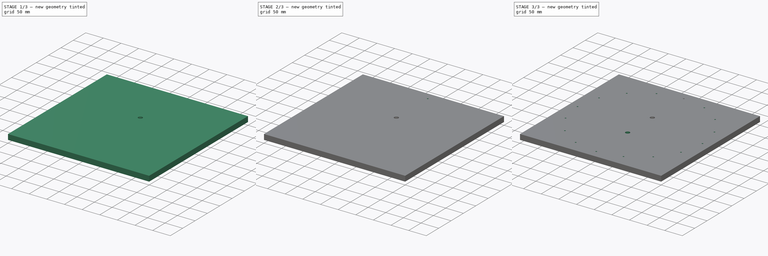
[diagram: build sequence overview — one tinted view per stage of 3, left to right]
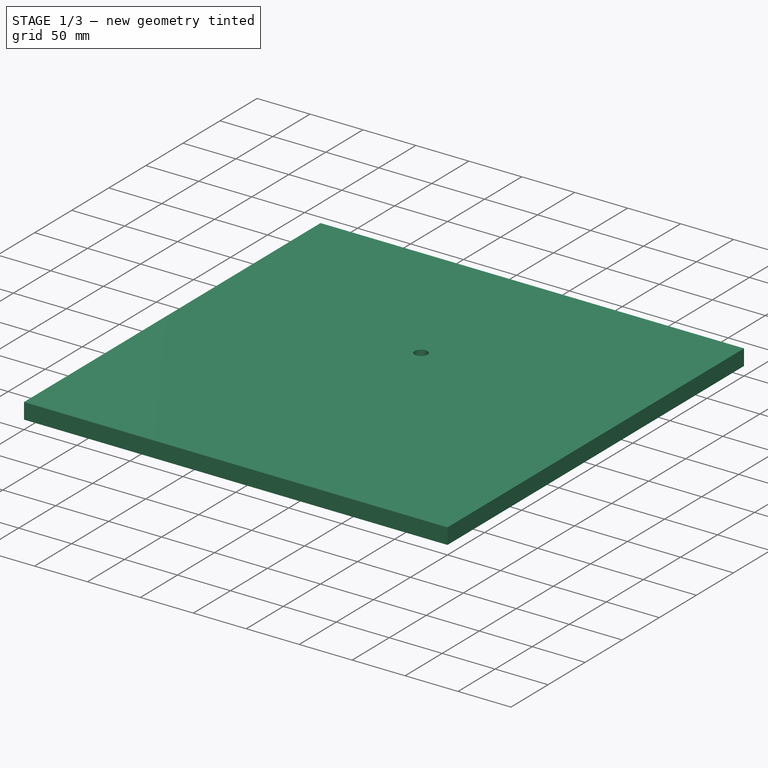
[diagram: stage 1 of 3 — iso view after this stage's code; geometry added in this stage tinted green]
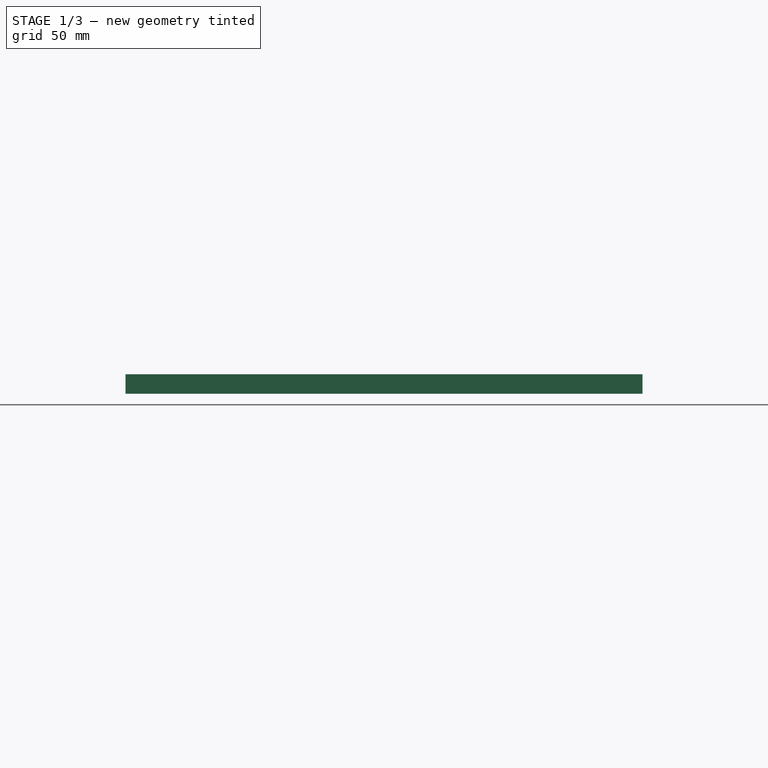
[diagram: stage 1 of 3 — front view after this stage's code; geometry added in this stage tinted green]
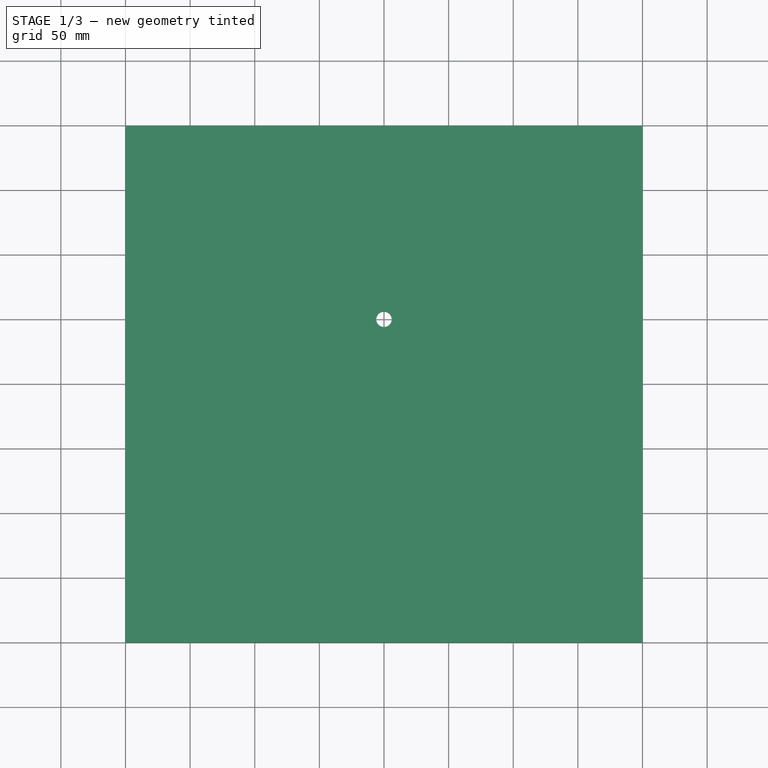
[diagram: stage 1 of 3 — top view after this stage's code; geometry added in this stage tinted green]
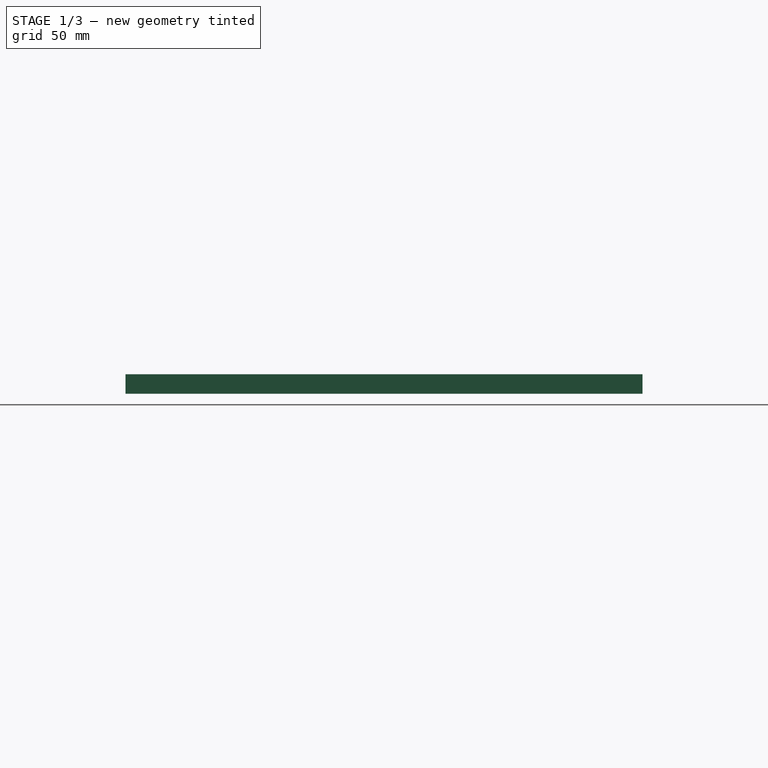
[diagram: stage 1 of 3 — right view after this stage's code; geometry added in this stage tinted green]
FCSTD DOCUMENT  (FreeCAD 0.20R29177 (Git))
Label: Rotor_Mold_Base
License: All rights reserved
LicenseURL: http://en.wikipedia.org/wiki/All_rights_reserved
objects: Sketcher::SketchObject×3, PartDesign::Pocket×2, PartDesign::PolarPattern×2, PartDesign::Pad×1, Spreadsheet::Sheet×1, PartDesign::Body×1
note: 12 computed .brp shape members not serialized (recipe doc carries the construction recipe); baked Part::Feature solids carry a one-line shape summary decoded from their .brp
EXTERNAL_REF file=../../../Master_of_Puppets.FCStd obj=Alternator
EXTERNAL_REF file=../../../Master_of_Puppets.FCStd obj=Hub
EXTERNAL_REF file=../../../Master_of_Puppets.FCStd obj=Spreadsheet

FEATURE [Sketcher::SketchObject] Sketch
  FullyConstrained = true
  MapMode = 5
  Support = -> [XY_Plane001]
  expr: Constraints[15] = Spreadsheet.RotorMoldSideLength
  sketch-geometry (6):
    g0: LineSegment StartX=-199.995 StartY=199.995 StartZ=0 EndX=199.995 EndY=199.995 EndZ=0
    g1: LineSegment StartX=199.995 StartY=199.995 StartZ=0 EndX=199.995 EndY=-199.995 EndZ=0
    g2: LineSegment StartX=199.995 StartY=-199.995 StartZ=0 EndX=-199.995 EndY=-199.995 EndZ=0
    g3: LineSegment StartX=-199.995 StartY=-199.995 StartZ=0 EndX=-199.995 EndY=199.995 EndZ=0
    g4: LineSegment StartX=-199.995 StartY=199.995 StartZ=0 EndX=199.995 EndY=-199.995 EndZ=0
    g5: LineSegment StartX=199.995 StartY=199.995 StartZ=0 EndX=-199.995 EndY=-199.995 EndZ=0
  constraints (16):
    c: Coincident(g0,g1)
    c: Coincident(g1,g2)
    c: Coincident(g2,g3)
    c: Coincident(g3,g0)
    c: Horizontal(g0)
    c: Horizontal(g2)
    c: Vertical(g1)
    c: Vertical(g3)
    c: Coincident(g4,g0)
    c: Coincident(g4,g1)
    c: Coincident(g5,g0)
    c: Coincident(g5,g2)
    c: PointOnObject(g-1,g5)
    c: PointOnObject(g-1,g4)
    c: Equal(g0,g3)
    c: Distance(g0) = 399.99
FEATURE [PartDesign::Pad] Pad
  AllowMultiFace = false
  Direction = (0,0,1)
  Length = 15
  Length2 = 100
  Profile = -> Sketch
  Type = 0
  expr: Length = Spreadsheet.RotorMoldBaseThickness
FEATURE [Sketcher::SketchObject] Sketch001  label="BoltHoleSketch"
  FullyConstrained = true
  MapMode = 5
  Placement = pos=(0,0,15) rot=(0,0,1;0rad)
  Support = -> [Pad]
  expr: Constraints[1] = Spreadsheet.HubPitchCircleRadius
  expr: Constraints[4] = Spreadsheet.HubHolesRadius
  sketch-geometry (2):
    g0: Circle CenterX=0 CenterY=0 CenterZ=0 NormalX=0 NormalY=0 NormalZ=1 AngleXU=0 Radius=50
    g1: Circle CenterX=0 CenterY=50 CenterZ=0 NormalX=0 NormalY=0 NormalZ=1 AngleXU=0 Radius=6
  constraints (5):
    c: Coincident(g0,g-1)
    c: Radius(g0) = 50
    c: PointOnObject(g1,g-2)
    c: PointOnObject(g1,g0)
    c: Radius(g1) = 6
FEATURE [PartDesign::Pocket] Pocket  label="BoltHolePocket"
  AllowMultiFace = false
  BaseFeature = -> Pad
  Direction = (0,0,-1)
  Length = 5
  Length2 = 100
  Profile = -> Sketch001
  Type = 1
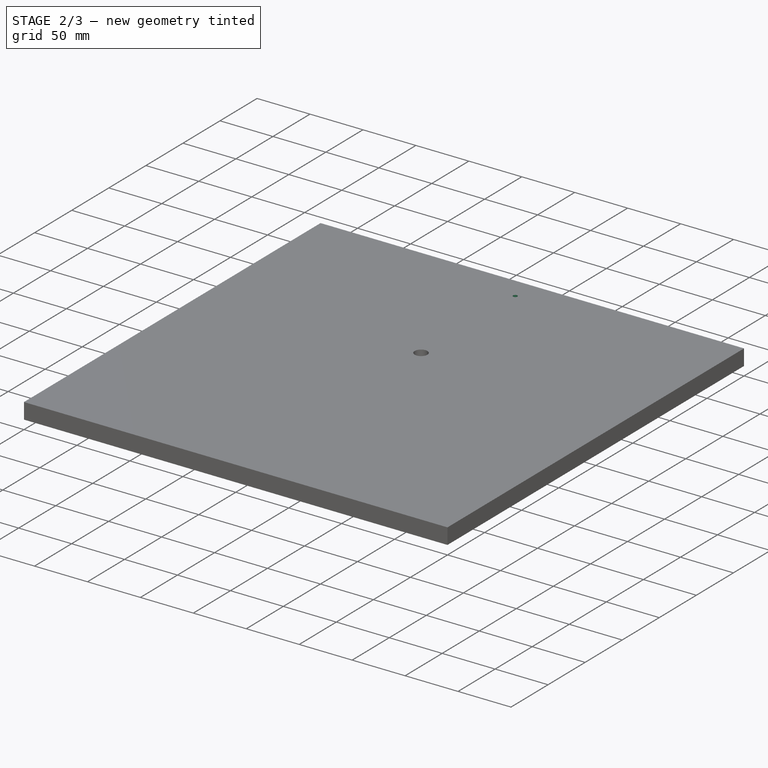
[diagram: stage 2 of 3 — iso view after this stage's code; geometry added in this stage tinted green]
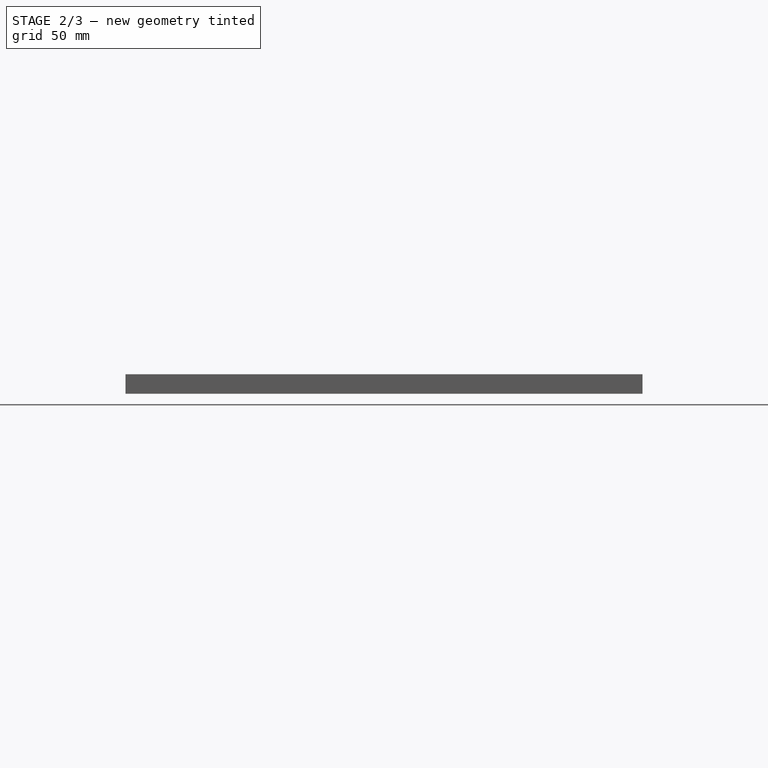
[diagram: stage 2 of 3 — front view after this stage's code; geometry added in this stage tinted green]
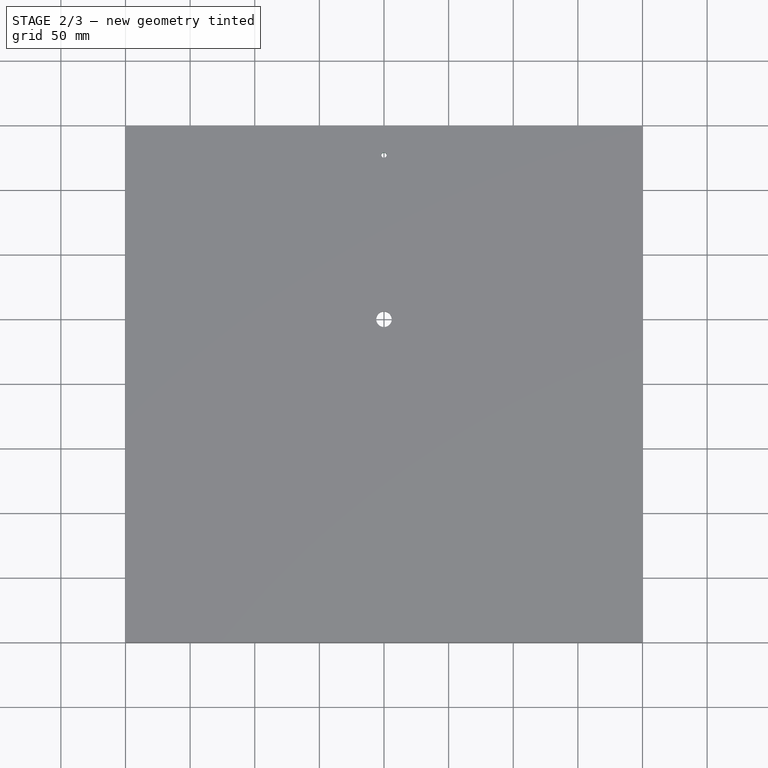
[diagram: stage 2 of 3 — top view after this stage's code; geometry added in this stage tinted green]
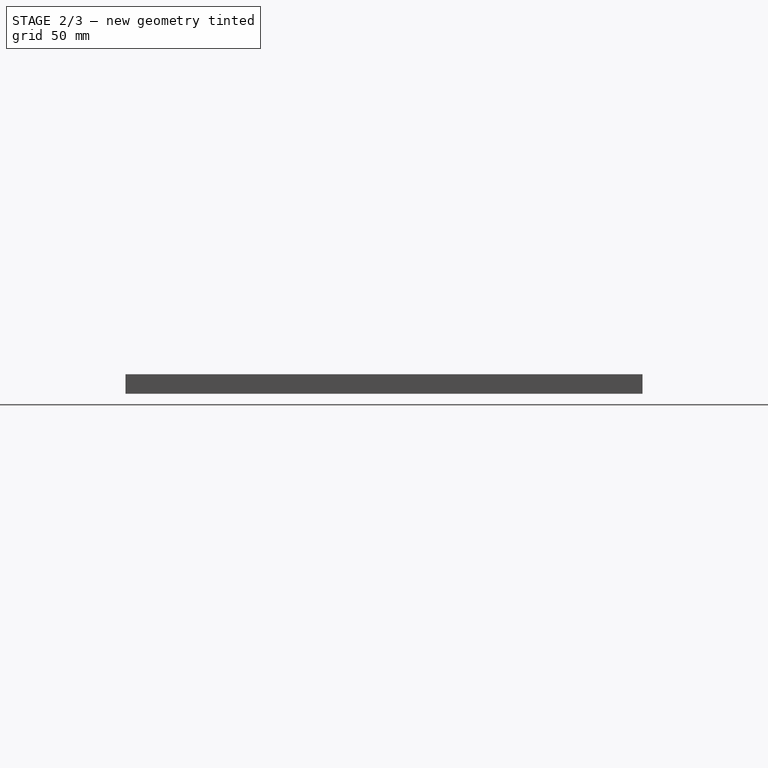
[diagram: stage 2 of 3 — right view after this stage's code; geometry added in this stage tinted green]
FEATURE [Sketcher::SketchObject] Sketch002  label="ScrewHoleSketch"
  FullyConstrained = true
  MapMode = 5
  Placement = pos=(0,0,15) rot=(0,0,1;0rad)
  Support = -> [Pocket]
  expr: Constraints[1] = Spreadsheet.RotorMoldScrewHolesCircumradius
  expr: Constraints[3] = Spreadsheet.ScrewHoleRadius
  sketch-geometry (2):
    g0: Circle CenterX=0 CenterY=0 CenterZ=0 NormalX=0 NormalY=0 NormalZ=1 AngleXU=0 Radius=177
    g1: Circle CenterX=0 CenterY=177 CenterZ=0 NormalX=0 NormalY=0 NormalZ=1 AngleXU=0 Radius=2
  constraints (5):
    c: Coincident(g0,g-1)
    c: Radius(g0) = 177
    c: PointOnObject(g1,g0)
    c: Radius(g1) = 2
    c: PointOnObject(g1,g-2)
FEATURE [PartDesign::Pocket] Pocket001  label="ScrewHolePocket"
  AllowMultiFace = false
  BaseFeature = -> Pocket
  Direction = (0,0,-1)
  Length = 5
  Length2 = 100
  Profile = -> Sketch002
  Type = 1
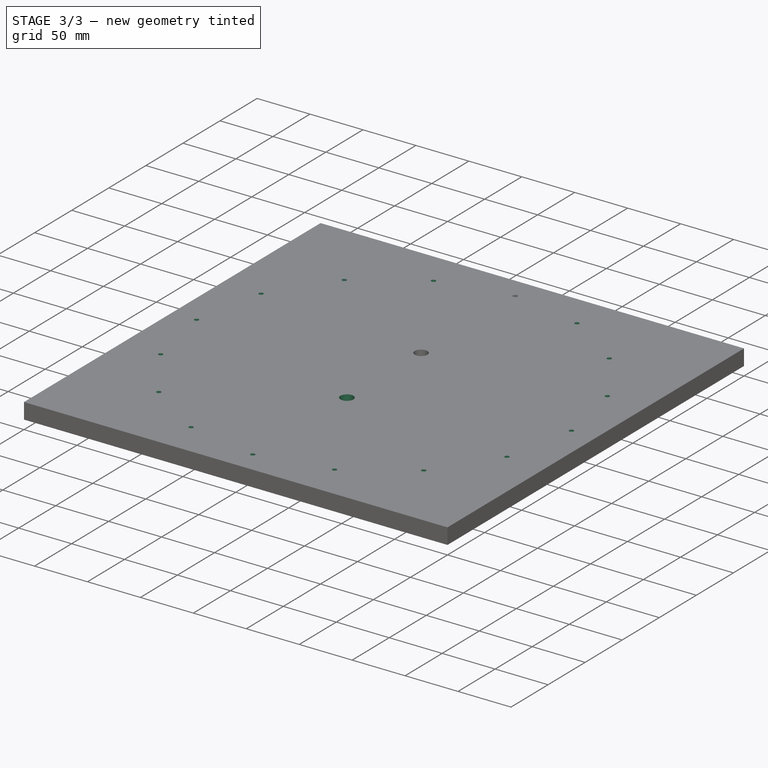
[diagram: stage 3 of 3 — iso view after this stage's code; geometry added in this stage tinted green]
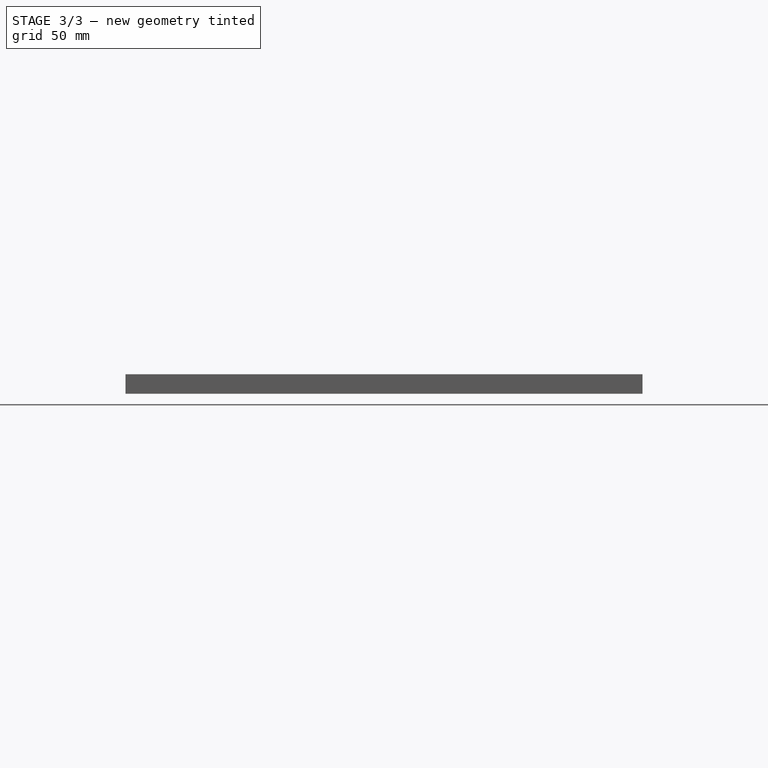
[diagram: stage 3 of 3 — front view after this stage's code; geometry added in this stage tinted green]
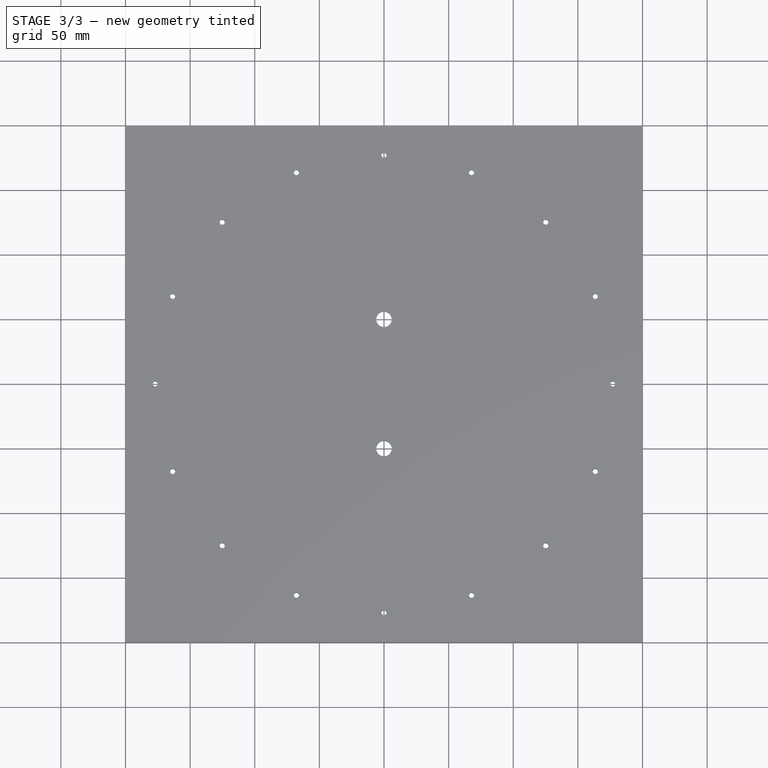
[diagram: stage 3 of 3 — top view after this stage's code; geometry added in this stage tinted green]
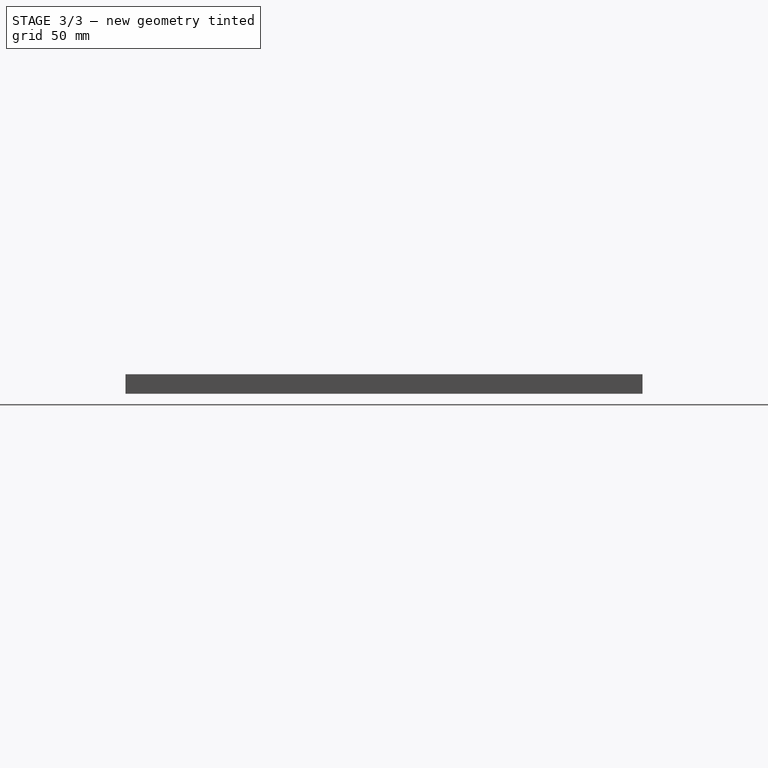
[diagram: stage 3 of 3 — right view after this stage's code; geometry added in this stage tinted green]
FEATURE [PartDesign::PolarPattern] PolarPattern  label="ScrewHolePolarPattern"
  Angle = 360
  Axis = -> Sketch002 [N_Axis]
  BaseFeature = -> Pocket001
  Occurrences = 16
  Originals = -> [Pocket001]
  expr: Occurrences = Spreadsheet.NumberOfRotorMoldScrews
FEATURE [Spreadsheet::Sheet] Spreadsheet
  cells = A1=Inputs; A2=RotorDiskRadius; B2(RotorDiskRadius)==Master_of_Puppets#Spreadsheet.RotorDiskRadius; A3=HubHolesRadius; B3(HubHolesRadius)==Master_of_Puppets#Hub.HubHolesRadius; A4=HubPitchCircleRadius; B4(HubPitchCircleRadius)==Master_of_Puppets#Hub.HubPitchCircleRadius; A5=ScrewHoleRadius; B5(ScrewHoleRadius)==Master_of_Puppets#Alternator.ScrewHoleRadius; A6=RotorMoldSideLength; B6(RotorMoldSideLength)==Master_of_Puppets#Alternator.RotorMoldSideLength; A7=NumberOfRotorMoldScrews; B7(NumberOfRotorMoldScrews)==Master_of_Puppets#Alternator.NumberOfRotorMoldScrews; A8=RotorMoldScrewHolesCircumradius; B8(RotorMoldScrewHolesCircumradius)==Master_of_Puppets#Alternator.RotorMoldScrewHolesCircumradius; A9=NumberOfRotorMoldBolts; B9(NumberOfRotorMoldBolts)==Master_of_Puppets#Alternator.NumberOfRotorMoldBolts; A10=RotorMoldBaseThickness; B10(RotorMoldBaseThickness)==Master_of_Puppets#Alternator.RotorMoldBaseThickness
FEATURE [PartDesign::PolarPattern] PolarPattern001  label="BoltHolePolarPattern"
  Angle = 360
  Axis = -> Sketch001 [N_Axis]
  BaseFeature = -> PolarPattern
  Occurrences = 2
  Originals = -> [Pocket]
  expr: Occurrences = Spreadsheet.NumberOfRotorMoldBolts
FEATURE [PartDesign::Body] PolarPatternBody  label="Rotor_Mold_Base"
  Group = -> [Sketch,Pad,Sketch001,Pocket,Sketch002,Pocket001,PolarPattern,PolarPattern001]
  Openafpm_Flat = true
  Origin = -> Origin001
  Tip = -> PolarPattern001
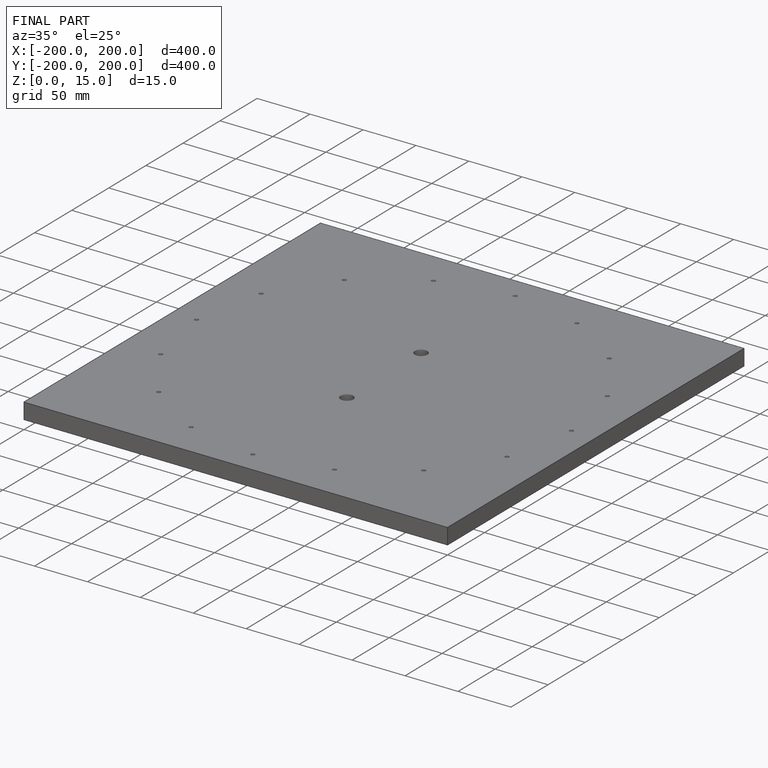
[diagram: finished part — iso view with bounding-box wireframe]
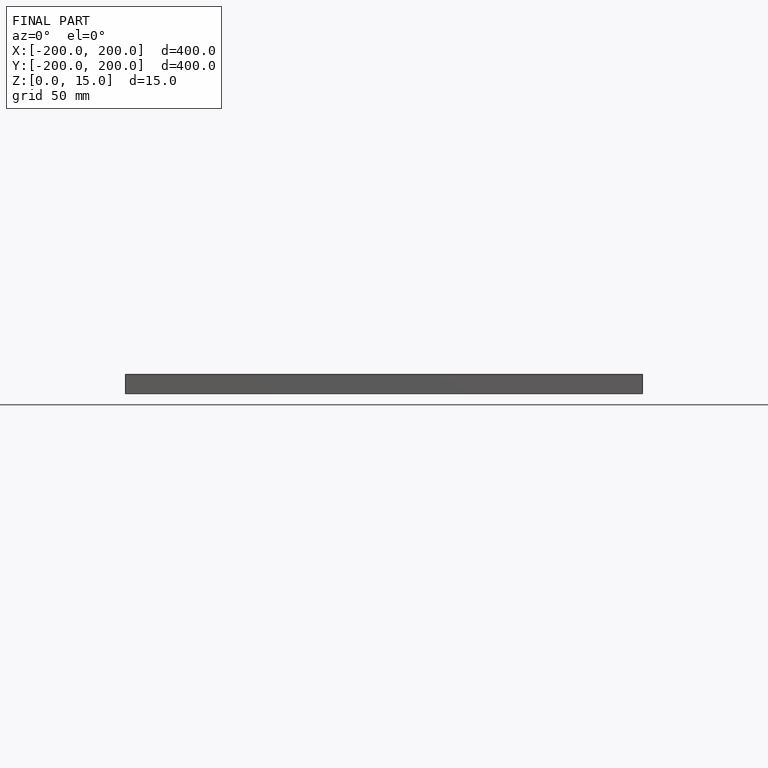
[diagram: finished part — front view with bounding-box wireframe]
